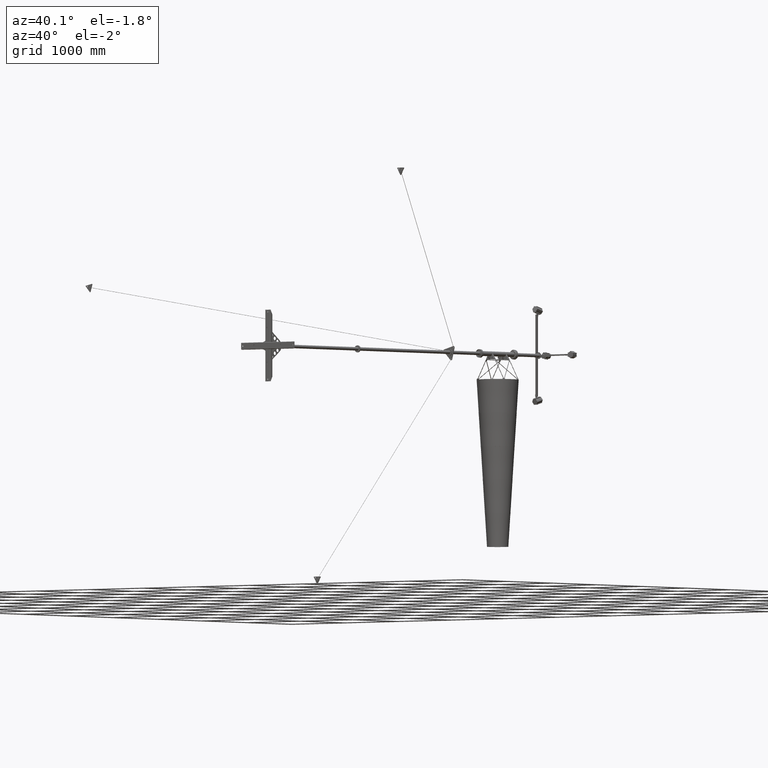
[diagram: clean part render]
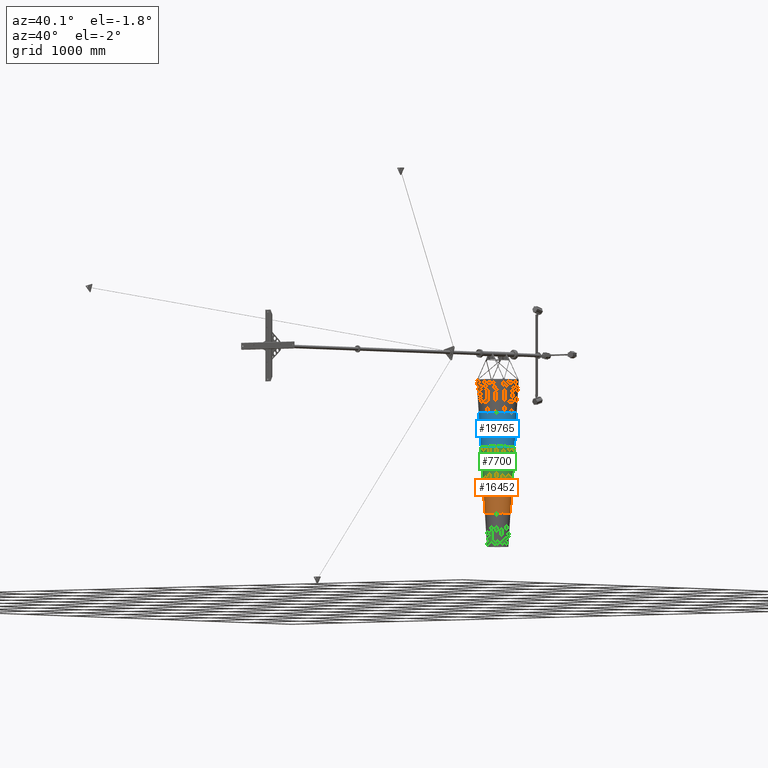
[diagram: same view with three faces highlighted in distinct colors, each labeled with its STEP entity id]
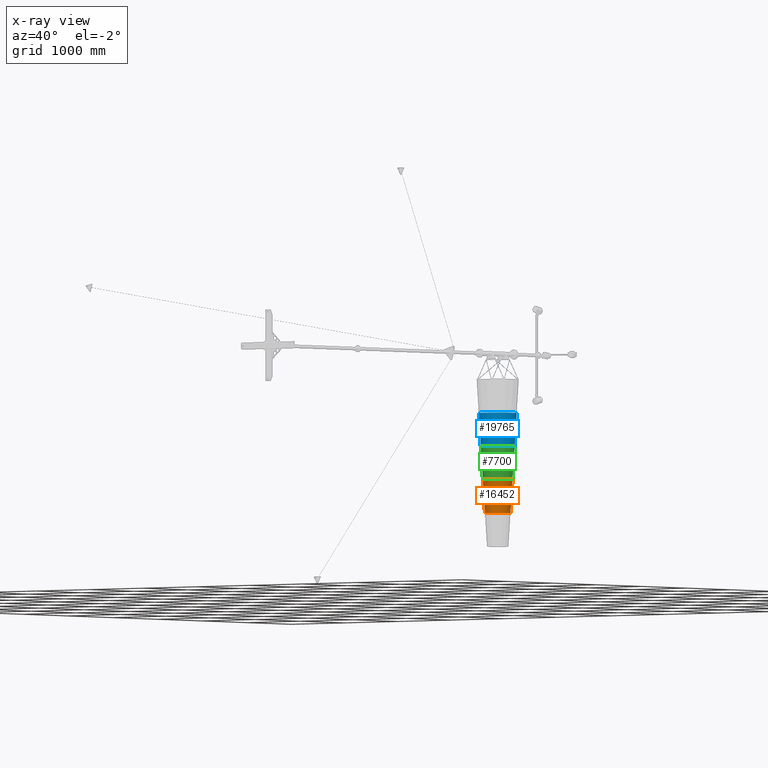
[diagram: x-ray of the same camera — body ghosted, the three highlighted faces saturated]
A machine part, auxiliary view with three faces highlighted in distinct colors.
The next image is the same camera in x-ray (body ghosted, the three faces saturated) — at least one of them is partly hidden behind the body in this view.
Their STEP definitions:

[orange] entity #16452 — the highlighted conical surface has half-angle 3.576 deg.
#642 = FACE_OUTER_BOUND ( 'NONE', #2393, .T. ) ;
#761 = EDGE_CURVE ( 'NONE', #12548, #33668, #25004, .T. ) ;
#842 = CARTESIAN_POINT ( 'NONE',  ( -215.0019512213671100, -1439.999999999999100, -4.774002331705941900E-014 ) ) ;
#1130 = CARTESIAN_POINT ( 'NONE',  ( 4.440892098500626200E-013, -1439.999999999999100, 0.0000000000000000000 ) ) ;
#1248 = AXIS2_PLACEMENT_3D ( 'NONE', #30685, #13025, #33654 ) ;
#1571 = CARTESIAN_POINT ( 'NONE',  ( 215.0019512213680200, -1439.999999999999100, 7.407016845442773100E-014 ) ) ;
#2393 = EDGE_LOOP ( 'NONE', ( #14729, #32038, #21697, #12778 ) ) ;
#3039 = DIRECTION ( 'NONE',  ( -1.000000000000000000, 0.0000000000000000000, -2.220446049250313600E-016 ) ) ;
#3178 = CIRCLE ( 'NONE', #35111, 215.0019512213675600 ) ;
#4091 = DIRECTION ( 'NONE',  ( -1.000000000000000000, 0.0000000000000000000, -2.220446049250313600E-016 ) ) ;
#4238 = CARTESIAN_POINT ( 'NONE',  ( 215.0019512213680200, -1439.999999999999100, 7.407016845442774400E-014 ) ) ;
#4773 = CONICAL_SURFACE ( 'NONE', #32047, 215.0019512213675600, 0.06241880999595735000 ) ;
#12548 = VERTEX_POINT ( 'NONE', #27857 ) ;
#12778 = ORIENTED_EDGE ( 'NONE', *, *, #19324, .F. ) ;
#13025 = DIRECTION ( 'NONE',  ( -4.841167131310451100E-016, 1.000000000000000000, 9.216905661604722400E-017 ) ) ;
#14729 = ORIENTED_EDGE ( 'NONE', *, *, #31731, .F. ) ;
#16224 = VERTEX_POINT ( 'NONE', #28521 ) ;
#16452 = ADVANCED_FACE ( 'NONE', ( #642 ), #4773, .T. ) ;
#18748 = VECTOR ( 'NONE', #33360, 1000.000000000000000 ) ;
#19324 = EDGE_CURVE ( 'NONE', #30531, #16224, #3178, .T. ) ;
#21260 = LINE ( 'NONE', #1571, #30984 ) ;
#21697 = ORIENTED_EDGE ( 'NONE', *, *, #28426, .T. ) ;
#21778 = DIRECTION ( 'NONE',  ( -4.841167131310451100E-016, 1.000000000000000000, 9.216905661604722400E-017 ) ) ;
#22201 = DIRECTION ( 'NONE',  ( 0.06237828615518006800, 0.9980525784828886400, 1.134794633648328400E-016 ) ) ;
#23549 = DIRECTION ( 'NONE',  ( -4.841167131310451100E-016, 1.000000000000000000, 9.216905661604722400E-017 ) ) ;
#25004 = CIRCLE ( 'NONE', #1248, 185.0019512213675900 ) ;
#26629 = LINE ( 'NONE', #842, #18748 ) ;
#27857 = CARTESIAN_POINT ( 'NONE',  ( 185.0019512213680700, -1919.999999999999100, 4.678195559397989200E-014 ) ) ;
#28426 = EDGE_CURVE ( 'NONE', #33668, #16224, #26629, .T. ) ;
#28521 = CARTESIAN_POINT ( 'NONE',  ( -215.0019512213671100, -1439.999999999999100, -4.774002331705942600E-014 ) ) ;
#30531 = VERTEX_POINT ( 'NONE', #4238 ) ;
#30685 = CARTESIAN_POINT ( 'NONE',  ( 4.440892098500626200E-013, -1919.999999999999100, 0.0000000000000000000 ) ) ;
#30984 = VECTOR ( 'NONE', #22201, 999.9999999999998900 ) ;
#31731 = EDGE_CURVE ( 'NONE', #12548, #30531, #21260, .T. ) ;
#32038 = ORIENTED_EDGE ( 'NONE', *, *, #761, .T. ) ;
#32047 = AXIS2_PLACEMENT_3D ( 'NONE', #32331, #23549, #3039 ) ;
#32331 = CARTESIAN_POINT ( 'NONE',  ( 4.440892098500626200E-013, -1439.999999999999100, 0.0000000000000000000 ) ) ;
#33360 = DIRECTION ( 'NONE',  ( -0.06237828615518103300, 0.9980525784828885300, 7.813880270675365600E-017 ) ) ;
#33654 = DIRECTION ( 'NONE',  ( -1.000000000000000000, 0.0000000000000000000, -2.220446049250313100E-016 ) ) ;
#33668 = VERTEX_POINT ( 'NONE', #34123 ) ;
#34123 = CARTESIAN_POINT ( 'NONE',  ( -185.0019512213671400, -1919.999999999999100, -4.107868516930848000E-014 ) ) ;
#35111 = AXIS2_PLACEMENT_3D ( 'NONE', #1130, #21778, #4091 ) ;

[blue] entity #19765 — the highlighted conical surface has half-angle 3.576 deg.
#272 = LINE ( 'NONE', #8172, #30741 ) ;
#440 = DIRECTION ( 'NONE',  ( -4.841167131310451100E-016, 1.000000000000000000, 9.216905661604722400E-017 ) ) ;
#500 = AXIS2_PLACEMENT_3D ( 'NONE', #21689, #4014, #24671 ) ;
#826 = DIRECTION ( 'NONE',  ( 0.06237828615518002700, 0.9980525784828886400, 1.134794633648328200E-016 ) ) ;
#836 = LINE ( 'NONE', #33207, #23426 ) ;
#1315 = FACE_OUTER_BOUND ( 'NONE', #10579, .T. ) ;
#2939 = ORIENTED_EDGE ( 'NONE', *, *, #23987, .T. ) ;
#3194 = VERTEX_POINT ( 'NONE', #22246 ) ;
#4014 = DIRECTION ( 'NONE',  ( -4.841167131310451100E-016, 1.000000000000000000, 9.216905661604722400E-017 ) ) ;
#8172 = CARTESIAN_POINT ( 'NONE',  ( -275.0019512213675100, -480.0000000000000600, -6.106269961256127900E-014 ) ) ;
#8414 = DIRECTION ( 'NONE',  ( -4.841167131310451100E-016, 1.000000000000000000, 9.216905661604722400E-017 ) ) ;
#10579 = EDGE_LOOP ( 'NONE', ( #13225, #24970, #2939, #21761 ) ) ;
#12318 = DIRECTION ( 'NONE',  ( -1.000000000000000000, 2.018572995017521800E-016, -2.220446049250313100E-016 ) ) ;
#12384 = CONICAL_SURFACE ( 'NONE', #33330, 275.0019512213675100, 0.06241880999595730800 ) ;
#12976 = EDGE_CURVE ( 'NONE', #14766, #29530, #836, .T. ) ;
#13225 = ORIENTED_EDGE ( 'NONE', *, *, #12976, .F. ) ;
#14766 = VERTEX_POINT ( 'NONE', #14786 ) ;
#14786 = CARTESIAN_POINT ( 'NONE',  ( 245.0019512213680200, -959.9999999999993200, 6.745251268436594900E-014 ) ) ;
#15943 = CIRCLE ( 'NONE', #500, 275.0019512213675100 ) ;
#19765 = ADVANCED_FACE ( 'NONE', ( #1315 ), #12384, .T. ) ;
#21689 = CARTESIAN_POINT ( 'NONE',  ( 0.0000000000000000000, -480.0000000000001100, 0.0000000000000000000 ) ) ;
#21761 = ORIENTED_EDGE ( 'NONE', *, *, #29006, .F. ) ;
#22246 = CARTESIAN_POINT ( 'NONE',  ( -245.0019512213670800, -959.9999999999993200, -5.440136146481035200E-014 ) ) ;
#23426 = VECTOR ( 'NONE', #826, 999.9999999999998900 ) ;
#23987 = EDGE_CURVE ( 'NONE', #3194, #35428, #272, .T. ) ;
#24671 = DIRECTION ( 'NONE',  ( -1.000000000000000000, 2.018572995017521800E-016, -2.220446049250313100E-016 ) ) ;
#24970 = ORIENTED_EDGE ( 'NONE', *, *, #31385, .T. ) ;
#26120 = CARTESIAN_POINT ( 'NONE',  ( 4.440892098500626200E-013, -959.9999999999994300, 0.0000000000000000000 ) ) ;
#28602 = CARTESIAN_POINT ( 'NONE',  ( -275.0019512213675100, -480.0000000000002300, -6.106269961256129100E-014 ) ) ;
#29006 = EDGE_CURVE ( 'NONE', #29530, #35428, #15943, .T. ) ;
#29088 = DIRECTION ( 'NONE',  ( -1.000000000000000000, 4.531486459967139500E-016, -2.220446049250313600E-016 ) ) ;
#29530 = VERTEX_POINT ( 'NONE', #36135 ) ;
#30741 = VECTOR ( 'NONE', #34764, 1000.000000000000000 ) ;
#31385 = EDGE_CURVE ( 'NONE', #14766, #3194, #32383, .T. ) ;
#32383 = CIRCLE ( 'NONE', #36721, 245.0019512213675300 ) ;
#33207 = CARTESIAN_POINT ( 'NONE',  ( 275.0019512213675100, -480.0000000000001700, 9.474072554481369300E-014 ) ) ;
#33330 = AXIS2_PLACEMENT_3D ( 'NONE', #35796, #440, #12318 ) ;
#34764 = DIRECTION ( 'NONE',  ( -0.06237828615518099100, 0.9980525784828885300, 7.813880270675366900E-017 ) ) ;
#35428 = VERTEX_POINT ( 'NONE', #28602 ) ;
#35796 = CARTESIAN_POINT ( 'NONE',  ( 0.0000000000000000000, -480.0000000000001100, 0.0000000000000000000 ) ) ;
#36135 = CARTESIAN_POINT ( 'NONE',  ( 275.0019512213675100, -480.0000000000000000, 9.474072554481371800E-014 ) ) ;
#36721 = AXIS2_PLACEMENT_3D ( 'NONE', #26120, #8414, #29088 ) ;

[green] entity #7700 — the highlighted conical surface has half-angle 3.576 deg.
#914 = AXIS2_PLACEMENT_3D ( 'NONE', #22972, #5315, #25973 ) ;
#1309 = DIRECTION ( 'NONE',  ( -0.06237828615518091500, 0.9980525784828885300, 7.813880270675368100E-017 ) ) ;
#1965 = EDGE_CURVE ( 'NONE', #26913, #14133, #17954, .T. ) ;
#2051 = CARTESIAN_POINT ( 'NONE',  ( 4.440892098500626200E-013, -1439.999999999999100, 0.0000000000000000000 ) ) ;
#2353 = EDGE_LOOP ( 'NONE', ( #5014, #28098, #17241, #17697 ) ) ;
#4693 = CARTESIAN_POINT ( 'NONE',  ( 244.5009756106841800, -959.9999999999993200, 8.423285625026189500E-014 ) ) ;
#5000 = DIRECTION ( 'NONE',  ( -1.000000000000000000, 0.0000000000000000000, -2.220446049250313600E-016 ) ) ;
#5014 = ORIENTED_EDGE ( 'NONE', *, *, #12997, .F. ) ;
#5315 = DIRECTION ( 'NONE',  ( -4.841167131310451100E-016, 1.000000000000000000, 9.216905661604722400E-017 ) ) ;
#6273 = CONICAL_SURFACE ( 'NONE', #22381, 244.5009756106837000, 0.06241880999595723200 ) ;
#7700 = ADVANCED_FACE ( 'NONE', ( #9949 ), #6273, .T. ) ;
#8398 = DIRECTION ( 'NONE',  ( -1.000000000000000000, 4.540771348057738600E-016, -2.220446049250313600E-016 ) ) ;
#8656 = LINE ( 'NONE', #24427, #31279 ) ;
#9949 = FACE_OUTER_BOUND ( 'NONE', #2353, .T. ) ;
#12708 = DIRECTION ( 'NONE',  ( 0.06237828615517995000, 0.9980525784828886400, 1.134794633648327900E-016 ) ) ;
#12997 = EDGE_CURVE ( 'NONE', #22722, #28620, #8656, .T. ) ;
#14133 = VERTEX_POINT ( 'NONE', #20603 ) ;
#15761 = CARTESIAN_POINT ( 'NONE',  ( 214.5009756106842600, -1439.999999999999100, 5.694464338981406200E-014 ) ) ;
#16757 = EDGE_CURVE ( 'NONE', #28620, #14133, #19965, .T. ) ;
#17241 = ORIENTED_EDGE ( 'NONE', *, *, #1965, .T. ) ;
#17697 = ORIENTED_EDGE ( 'NONE', *, *, #16757, .F. ) ;
#17954 = LINE ( 'NONE', #33690, #24896 ) ;
#19965 = CIRCLE ( 'NONE', #914, 244.5009756106837000 ) ;
#20603 = CARTESIAN_POINT ( 'NONE',  ( -244.5009756106832400, -959.9999999999995500, -5.429012253325900200E-014 ) ) ;
#22199 = CIRCLE ( 'NONE', #25502, 214.5009756106837500 ) ;
#22381 = AXIS2_PLACEMENT_3D ( 'NONE', #26099, #28953, #8398 ) ;
#22669 = DIRECTION ( 'NONE',  ( -4.841167131310451100E-016, 1.000000000000000000, 9.216905661604722400E-017 ) ) ;
#22722 = VERTEX_POINT ( 'NONE', #15761 ) ;
#22972 = CARTESIAN_POINT ( 'NONE',  ( 4.440892098500626200E-013, -959.9999999999994300, 0.0000000000000000000 ) ) ;
#24427 = CARTESIAN_POINT ( 'NONE',  ( 244.5009756106841500, -959.9999999999995500, 8.423285625026187000E-014 ) ) ;
#24896 = VECTOR ( 'NONE', #1309, 1000.000000000000000 ) ;
#25502 = AXIS2_PLACEMENT_3D ( 'NONE', #2051, #22669, #5000 ) ;
#25973 = DIRECTION ( 'NONE',  ( -1.000000000000000000, 4.540771348057738600E-016, -2.220446049250313600E-016 ) ) ;
#26099 = CARTESIAN_POINT ( 'NONE',  ( 4.440892098500626200E-013, -959.9999999999994300, 0.0000000000000000000 ) ) ;
#26913 = VERTEX_POINT ( 'NONE', #29246 ) ;
#28098 = ORIENTED_EDGE ( 'NONE', *, *, #36532, .T. ) ;
#28620 = VERTEX_POINT ( 'NONE', #4693 ) ;
#28953 = DIRECTION ( 'NONE',  ( -4.841167131310451100E-016, 1.000000000000000000, 9.216905661604722400E-017 ) ) ;
#29246 = CARTESIAN_POINT ( 'NONE',  ( -214.5009756106833300, -1439.999999999999100, -4.762878438550805600E-014 ) ) ;
#31279 = VECTOR ( 'NONE', #12708, 1000.000000000000100 ) ;
#33690 = CARTESIAN_POINT ( 'NONE',  ( -244.5009756106832700, -959.9999999999993200, -5.429012253325898300E-014 ) ) ;
#36532 = EDGE_CURVE ( 'NONE', #22722, #26913, #22199, .T. ) ;